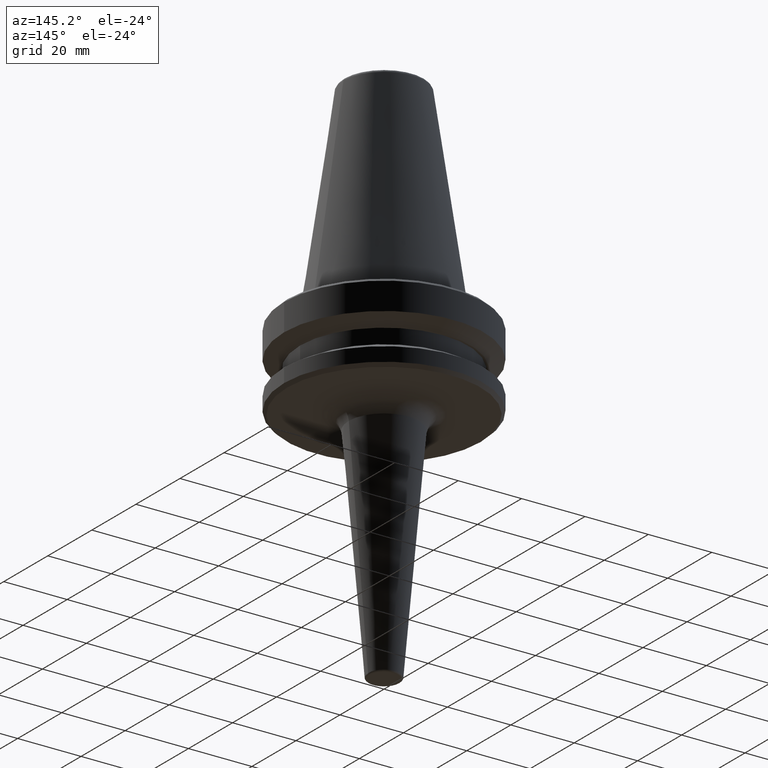
[diagram: clean part render]
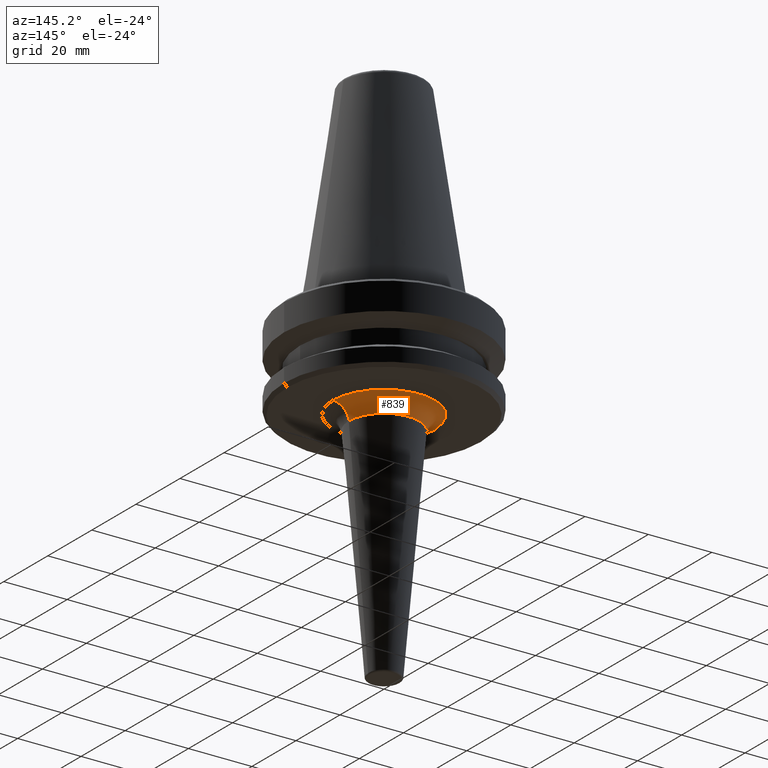
[diagram: same view with one face highlighted and labeled with its STEP entity id]
A machine part, auxiliary view. The second image highlights one B-rep face of the part: STEP entity #839.
In plain terms, the highlighted toroidal blend (fillet) surface has major radius 16.0854 mm and minor (blend) radius 5 mm.
Its self-contained STEP definition (entity closure, byte-faithful):
#33 = ORIENTED_EDGE ( 'NONE', *, *, #299, .T. ) ;
#128 = CARTESIAN_POINT ( 'NONE',  ( 0.0000000000000000000, 0.0000000000000000000, -97.40000000000807700 ) ) ;
#129 = VERTEX_POINT ( 'NONE', #617 ) ;
#130 = TOROIDAL_SURFACE ( 'NONE', #554, 16.08540931575495800, 5.000000000000004400 ) ;
#154 = CARTESIAN_POINT ( 'NONE',  ( 11.10408196984262800, 0.0000000000000000000, -96.96828496336233600 ) ) ;
#191 = DIRECTION ( 'NONE',  ( -0.0000000000000000000, -0.0000000000000000000, 1.000000000000000000 ) ) ;
#227 = CARTESIAN_POINT ( 'NONE',  ( 0.0000000000000000000, 0.0000000000000000000, -96.96828496336233600 ) ) ;
#237 = AXIS2_PLACEMENT_3D ( 'NONE', #422, #1007, #509 ) ;
#252 = ORIENTED_EDGE ( 'NONE', *, *, #624, .F. ) ;
#279 = CIRCLE ( 'NONE', #941, 5.000000000000004400 ) ;
#299 = EDGE_CURVE ( 'NONE', #300, #685, #959, .T. ) ;
#300 = VERTEX_POINT ( 'NONE', #154 ) ;
#321 = DIRECTION ( 'NONE',  ( 1.000000000000000000, 0.0000000000000000000, 0.0000000000000000000 ) ) ;
#347 = DIRECTION ( 'NONE',  ( 0.0000000000000000000, -1.000000000000000000, 0.0000000000000000000 ) ) ;
#349 = EDGE_CURVE ( 'NONE', #129, #300, #279, .T. ) ;
#361 = CIRCLE ( 'NONE', #237, 5.000000000000004400 ) ;
#394 = CARTESIAN_POINT ( 'NONE',  ( 0.0000000000000000000, 0.0000000000000000000, -92.40000000000807700 ) ) ;
#422 = CARTESIAN_POINT ( 'NONE',  ( -16.08540931575495800, 1.969894503151432800E-015, -97.40000000000807700 ) ) ;
#477 = DIRECTION ( 'NONE',  ( 1.000000000000000000, 0.0000000000000000000, 0.0000000000000000000 ) ) ;
#509 = DIRECTION ( 'NONE',  ( -1.000000000000000000, 1.224646799147353500E-016, 0.0000000000000000000 ) ) ;
#554 = AXIS2_PLACEMENT_3D ( 'NONE', #128, #191, #752 ) ;
#558 = CARTESIAN_POINT ( 'NONE',  ( -11.10408196984262800, 1.664876173667597200E-015, -96.96828496336233600 ) ) ;
#617 = CARTESIAN_POINT ( 'NONE',  ( 16.08540931575495800, 0.0000000000000000000, -92.40000000000807700 ) ) ;
#624 = EDGE_CURVE ( 'NONE', #129, #1023, #757, .T. ) ;
#685 = VERTEX_POINT ( 'NONE', #558 ) ;
#728 = FACE_OUTER_BOUND ( 'NONE', #900, .T. ) ;
#737 = AXIS2_PLACEMENT_3D ( 'NONE', #227, #791, #321 ) ;
#752 = DIRECTION ( 'NONE',  ( 1.000000000000000000, 0.0000000000000000000, 0.0000000000000000000 ) ) ;
#757 = CIRCLE ( 'NONE', #812, 16.08540931575495800 ) ;
#791 = DIRECTION ( 'NONE',  ( -0.0000000000000000000, -0.0000000000000000000, 1.000000000000000000 ) ) ;
#812 = AXIS2_PLACEMENT_3D ( 'NONE', #394, #983, #477 ) ;
#820 = CARTESIAN_POINT ( 'NONE',  ( 16.08540931575495800, 0.0000000000000000000, -97.40000000000807700 ) ) ;
#825 = EDGE_CURVE ( 'NONE', #1023, #685, #361, .T. ) ;
#839 = ADVANCED_FACE ( 'NONE', ( #728 ), #130, .F. ) ;
#843 = CARTESIAN_POINT ( 'NONE',  ( -16.08540931575495800, 1.969894503151432800E-015, -92.40000000000807700 ) ) ;
#852 = ORIENTED_EDGE ( 'NONE', *, *, #825, .F. ) ;
#877 = ORIENTED_EDGE ( 'NONE', *, *, #349, .T. ) ;
#900 = EDGE_LOOP ( 'NONE', ( #852, #252, #877, #33 ) ) ;
#920 = DIRECTION ( 'NONE',  ( 0.0000000000000000000, 0.0000000000000000000, -1.000000000000000000 ) ) ;
#941 = AXIS2_PLACEMENT_3D ( 'NONE', #820, #347, #920 ) ;
#959 = CIRCLE ( 'NONE', #737, 11.10408196984262800 ) ;
#983 = DIRECTION ( 'NONE',  ( -0.0000000000000000000, -0.0000000000000000000, 1.000000000000000000 ) ) ;
#1007 = DIRECTION ( 'NONE',  ( 1.224646799147353200E-016, 1.000000000000000000, 0.0000000000000000000 ) ) ;
#1023 = VERTEX_POINT ( 'NONE', #843 ) ;